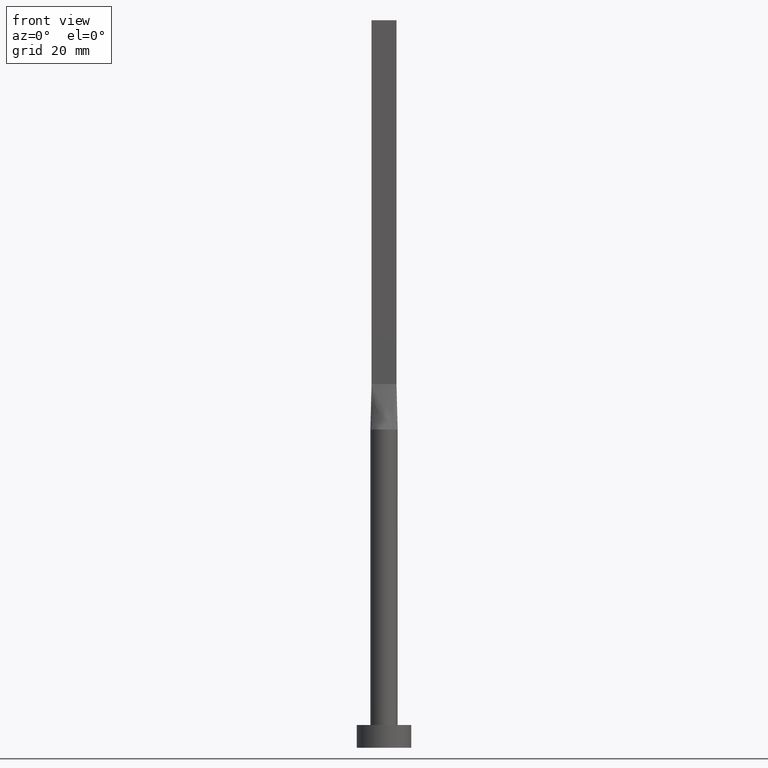
[diagram: clean part render]
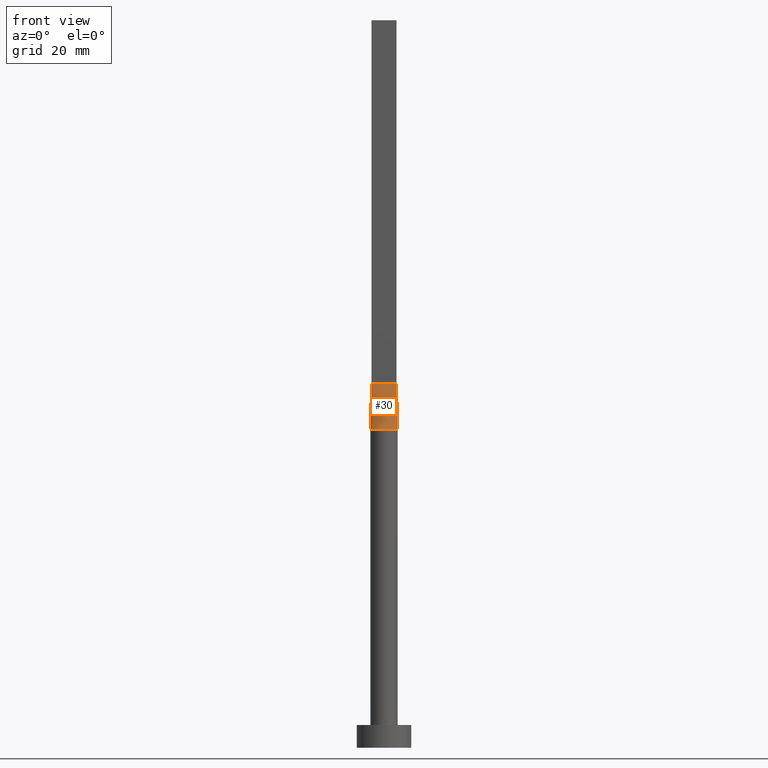
[diagram: same view with one face highlighted and labeled with its STEP entity id]
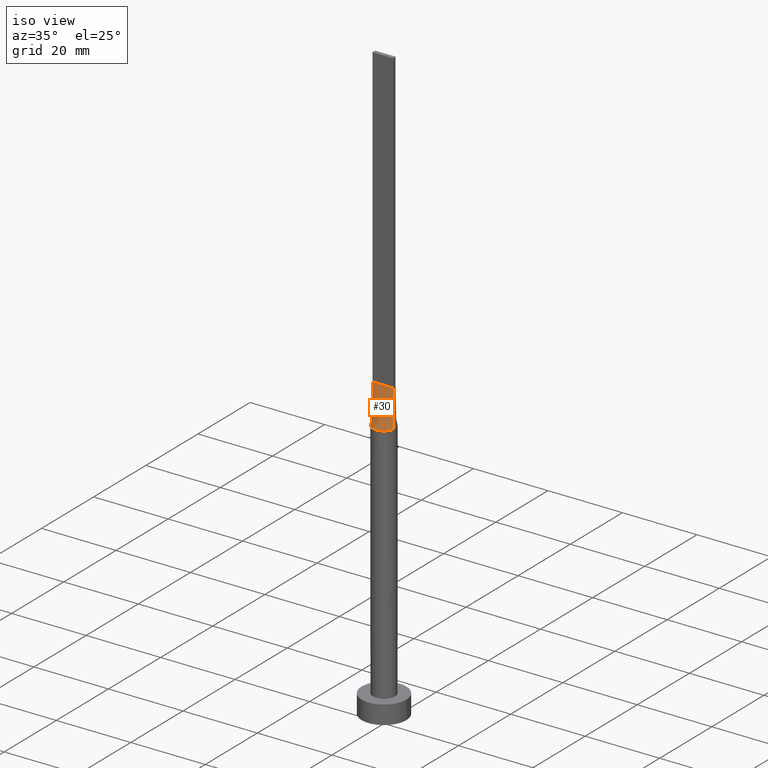
[diagram: same view with one face highlighted and labeled with its STEP entity id]
A machine part, front view. The second image highlights one B-rep face of the part: STEP entity #30.
A second angle (iso view) of the same face is appended — the face is thin or edge-on in the first view.
In plain terms, the highlighted face is a freeform B-spline surface patch.
Its self-contained STEP definition (entity closure, byte-faithful):
#2 = EDGE_CURVE ( 'NONE', #473, #465, #387, .T. ) ;
#20 = CARTESIAN_POINT ( 'NONE',  ( 0.000000000000000000, 0.000000000000000000, 70.00000000000000000 ) ) ;
#23 = CARTESIAN_POINT ( 'NONE',  ( 2.907609730299723250, -0.7786563145999499946, 70.00000000000001421 ) ) ;
#29 = DIRECTION ( 'NONE',  ( 1.000000000000000000, -5.913830031739115543E-17, 0.000000000000000000 ) ) ;
#30 = ADVANCED_FACE ( 'NONE', ( #563 ), #466, .T. ) ;
#34 = DIRECTION ( 'NONE',  ( -0.02015674154923151329, -0.003664862099860239936, -0.9997901152521495582 ) ) ;
#42 = VECTOR ( 'NONE', #288, 1000.000000000000114 ) ;
#44 = ORIENTED_EDGE ( 'NONE', *, *, #2, .T. ) ;
#45 = CARTESIAN_POINT ( 'NONE',  ( 2.951896064709005785, -0.5367080392066734262, 70.00000000000000000 ) ) ;
#82 = CARTESIAN_POINT ( 'NONE',  ( 2.567367750129864401, -1.580669302822276023, 70.00000000000001421 ) ) ;
#86 = CARTESIAN_POINT ( 'NONE',  ( -0.4583333333333340365, -0.4999999999999995559, 79.99999999999998579 ) ) ;
#89 = CARTESIAN_POINT ( 'NONE',  ( 0.2291666666666659635, -0.4999999999999995559, 79.99999999999998579 ) ) ;
#90 = CARTESIAN_POINT ( 'NONE',  ( 0.4583333333333325932, -0.4999999999999995559, 79.99999999999998579 ) ) ;
#112 = VECTOR ( 'NONE', #34, 1000.000000000000114 ) ;
#117 = CARTESIAN_POINT ( 'NONE',  ( 2.850804865149861200, -0.5183281572999745013, 75.00000000000001421 ) ) ;
#121 = CARTESIAN_POINT ( 'NONE',  ( -2.520833333333333037, -0.4999999999999994449, 79.99999999999998579 ) ) ;
#127 = CARTESIAN_POINT ( 'NONE',  ( -2.567367750129864845, -1.580669302822274691, 70.00000000000000000 ) ) ;
#129 = CARTESIAN_POINT ( 'NONE',  ( -1.566158656300002727, -2.589797565249318811, 70.00000000000000000 ) ) ;
#130 = CIRCLE ( 'NONE', #243, 3.000000000000000444 ) ;
#132 = EDGE_LOOP ( 'NONE', ( #496, #44, #499, #514 ) ) ;
#133 = LINE ( 'NONE', #211, #112 ) ;
#158 = CARTESIAN_POINT ( 'NONE',  ( -2.750000000000000000, -0.4999999999999994449, 80.00000000000000000 ) ) ;
#161 = CARTESIAN_POINT ( 'NONE',  ( -2.951609730299722845, -0.5366563145999487805, 70.00000000000000000 ) ) ;
#163 = EDGE_CURVE ( 'NONE', #191, #239, #133, .T. ) ;
#164 = CARTESIAN_POINT ( 'NONE',  ( -2.951885853416577277, -0.5367063210726346068, 70.00000000000000000 ) ) ;
#166 = CARTESIAN_POINT ( 'NONE',  ( -1.882426928433514224, -2.362790634184934291, 69.99999999999998579 ) ) ;
#171 = CARTESIAN_POINT ( 'NONE',  ( 1.566158656300001395, -2.589797565249319256, 69.99999999999998579 ) ) ;
#191 = VERTEX_POINT ( 'NONE', #349 ) ;
#208 = CARTESIAN_POINT ( 'NONE',  ( -1.145833333333333703, -0.4999999999999995559, 79.99999999999998579 ) ) ;
#211 = CARTESIAN_POINT ( 'NONE',  ( -2.850804865149861644, -0.5183281572999741682, 75.00000000000001421 ) ) ;
#239 = VERTEX_POINT ( 'NONE', #164 ) ;
#243 = AXIS2_PLACEMENT_3D ( 'NONE', #20, #556, #564 ) ;
#251 = CARTESIAN_POINT ( 'NONE',  ( -2.382399439808189356, -1.857547746650220599, 70.00000000000000000 ) ) ;
#257 = CARTESIAN_POINT ( 'NONE',  ( -0.4172881767044983592, -2.999999999999999556, 70.00000000000000000 ) ) ;
#261 = CARTESIAN_POINT ( 'NONE',  ( 0.8331239790496235420, -2.909606296598777231, 70.00000000000001421 ) ) ;
#266 = EDGE_CURVE ( 'NONE', #191, #465, #427, .T. ) ;
#287 = CARTESIAN_POINT ( 'NONE',  ( 2.829409566978765334, -1.041313647073049742, 70.00000000000001421 ) ) ;
#288 = DIRECTION ( 'NONE',  ( -0.02015674154923147166, 0.003664862099860250778, 0.9997901152521495582 ) ) ;
#333 = CARTESIAN_POINT ( 'NONE',  ( 2.291666666666666075, -0.4999999999999997780, 79.99999999999998579 ) ) ;
#340 = CARTESIAN_POINT ( 'NONE',  ( -2.907609730299723250, -0.7786563145999485513, 70.00000000000001421 ) ) ;
#342 = CARTESIAN_POINT ( 'NONE',  ( 0.9166666666666658525, -0.4999999999999995559, 79.99999999999998579 ) ) ;
#344 = CARTESIAN_POINT ( 'NONE',  ( -1.833333333333333481, -0.4999999999999995559, 79.99999999999998579 ) ) ;
#349 = CARTESIAN_POINT ( 'NONE',  ( -2.750000000000000000, -0.4999999999999994449, 80.00000000000000000 ) ) ;
#352 = CARTESIAN_POINT ( 'NONE',  ( 0.4172881767044969714, -3.000000000000000444, 69.99999999999998579 ) ) ;
#380 = VECTOR ( 'NONE', #29, 1000.000000000000000 ) ;
#387 = LINE ( 'NONE', #117, #42 ) ;
#394 = CARTESIAN_POINT ( 'NONE',  ( 2.750000000000000000, -0.4999999999999997780, 80.00000000000000000 ) ) ;
#427 = LINE ( 'NONE', #430, #380 ) ;
#430 = CARTESIAN_POINT ( 'NONE',  ( -2.750000000000000000, -0.4999999999999994449, 80.00000000000000000 ) ) ;
#436 = CARTESIAN_POINT ( 'NONE',  ( 2.951609730299722401, -0.5366563145999492246, 70.00000000000000000 ) ) ;
#465 = VERTEX_POINT ( 'NONE', #532 ) ;
#466 = B_SPLINE_SURFACE_WITH_KNOTS ( 'NONE', 3, 1, ( 
 ( #161, #158 ),
 ( #340, #121 ),
 ( #476, #568 ),
 ( #127, #344 ),
 ( #251, #489 ),
 ( #166, #208 ),
 ( #129, #485 ),
 ( #571, #86 ),
 ( #257, #576 ),
 ( #352, #89 ),
 ( #261, #90 ),
 ( #171, #342 ),
 ( #541, #495 ),
 ( #527, #529 ),
 ( #82, #549 ),
 ( #287, #333 ),
 ( #23, #518 ),
 ( #436, #394 ) ),
 .UNSPECIFIED., .F., .F., .F.,
 ( 4, 2, 2, 2, 2, 2, 2, 2, 4 ),
 ( 2, 2 ),
 ( 0.000000000000000000, 0.1250000000000000000, 0.2500000000000000000, 0.3750000000000000000, 0.5000000000000000000, 0.6250000000000000000, 0.7500000000000000000, 0.8750000000000000000, 1.000000000000000000 ),
 ( 0.000000000000000000, 1.000000000000000000 ),
 .UNSPECIFIED. ) ;
#473 = VERTEX_POINT ( 'NONE', #45 ) ;
#476 = CARTESIAN_POINT ( 'NONE',  ( -2.829409566978767110, -1.041313647073048854, 70.00000000000000000 ) ) ;
#485 = CARTESIAN_POINT ( 'NONE',  ( -0.9166666666666671848, -0.4999999999999995559, 79.99999999999998579 ) ) ;
#489 = CARTESIAN_POINT ( 'NONE',  ( -1.604166666666666963, -0.4999999999999995559, 79.99999999999998579 ) ) ;
#495 = CARTESIAN_POINT ( 'NONE',  ( 1.145833333333332371, -0.4999999999999996669, 79.99999999999998579 ) ) ;
#496 = ORIENTED_EDGE ( 'NONE', *, *, #550, .T. ) ;
#499 = ORIENTED_EDGE ( 'NONE', *, *, #266, .F. ) ;
#514 = ORIENTED_EDGE ( 'NONE', *, *, #163, .T. ) ;
#518 = CARTESIAN_POINT ( 'NONE',  ( 2.520833333333333037, -0.4999999999999997780, 79.99999999999998579 ) ) ;
#527 = CARTESIAN_POINT ( 'NONE',  ( 2.382399439808186692, -1.857547746650222154, 70.00000000000001421 ) ) ;
#529 = CARTESIAN_POINT ( 'NONE',  ( 1.604166666666666075, -0.4999999999999997780, 79.99999999999998579 ) ) ;
#532 = CARTESIAN_POINT ( 'NONE',  ( 2.750000000000000000, -0.4999999999999997780, 80.00000000000000000 ) ) ;
#541 = CARTESIAN_POINT ( 'NONE',  ( 1.882426928433513114, -2.362790634184936511, 70.00000000000001421 ) ) ;
#549 = CARTESIAN_POINT ( 'NONE',  ( 1.833333333333332593, -0.4999999999999997780, 79.99999999999998579 ) ) ;
#550 = EDGE_CURVE ( 'NONE', #239, #473, #130, .T. ) ;
#556 = DIRECTION ( 'NONE',  ( 0.000000000000000000, 0.000000000000000000, 1.000000000000000000 ) ) ;
#563 = FACE_OUTER_BOUND ( 'NONE', #132, .T. ) ;
#564 = DIRECTION ( 'NONE',  ( 1.000000000000000000, 0.000000000000000000, 0.000000000000000000 ) ) ;
#568 = CARTESIAN_POINT ( 'NONE',  ( -2.291666666666666519, -0.4999999999999994449, 79.99999999999998579 ) ) ;
#571 = CARTESIAN_POINT ( 'NONE',  ( -0.8331239790496242081, -2.909606296598777231, 69.99999999999998579 ) ) ;
#576 = CARTESIAN_POINT ( 'NONE',  ( -0.2291666666666674346, -0.4999999999999995559, 80.00000000000000000 ) ) ;